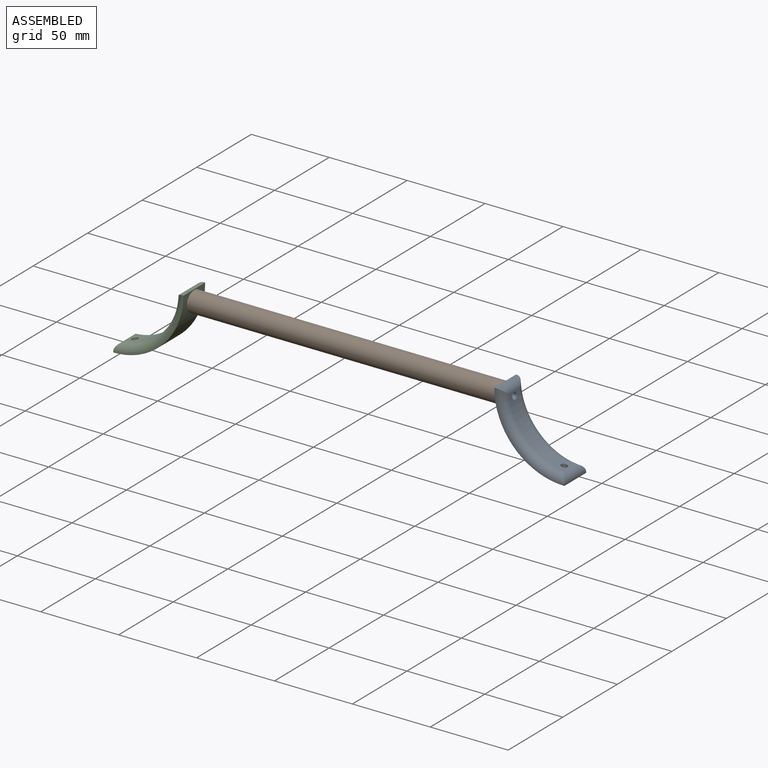
[diagram: assembled view]
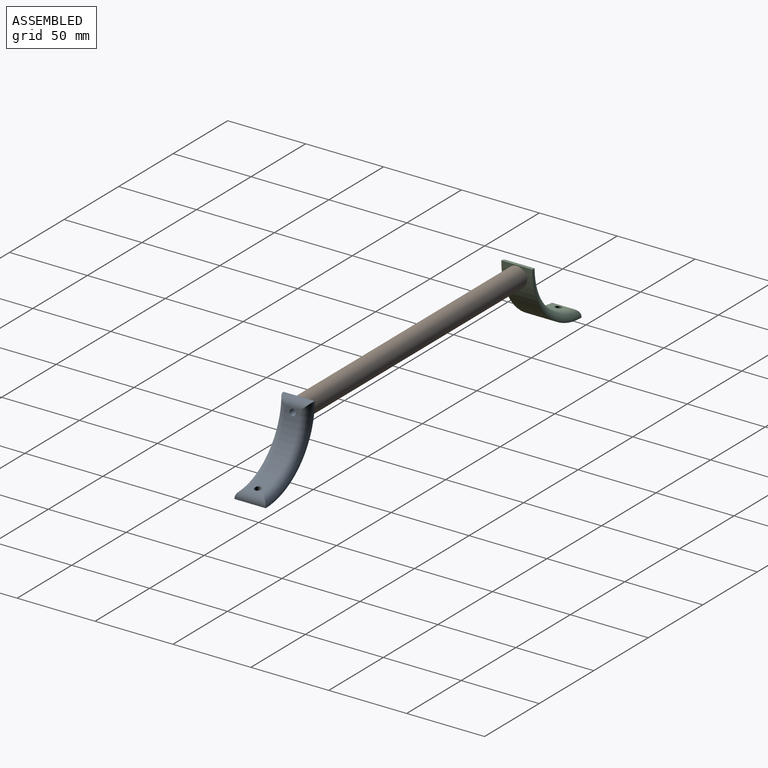
[diagram: assembled view, second angle]
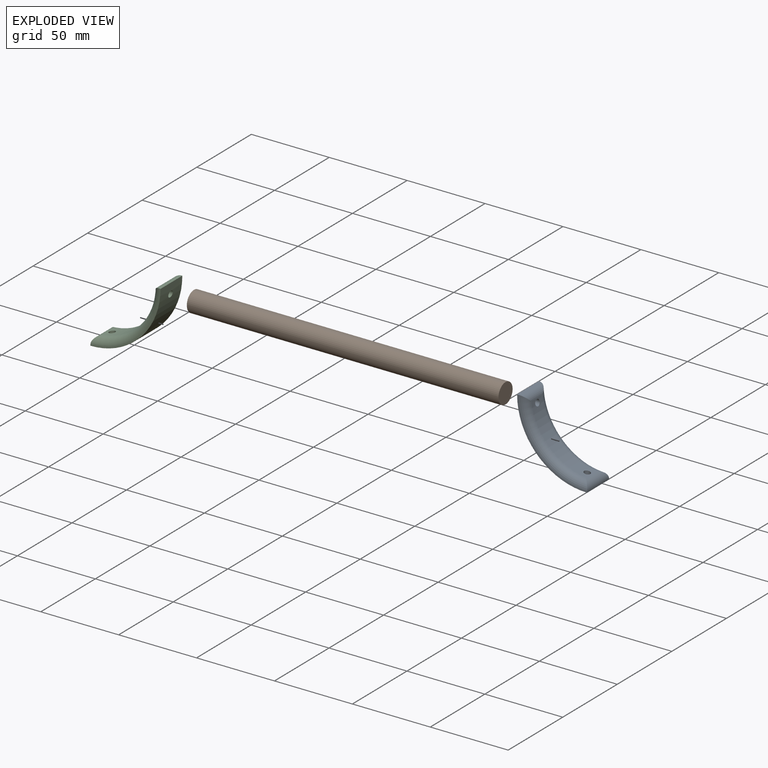
[diagram: exploded view]
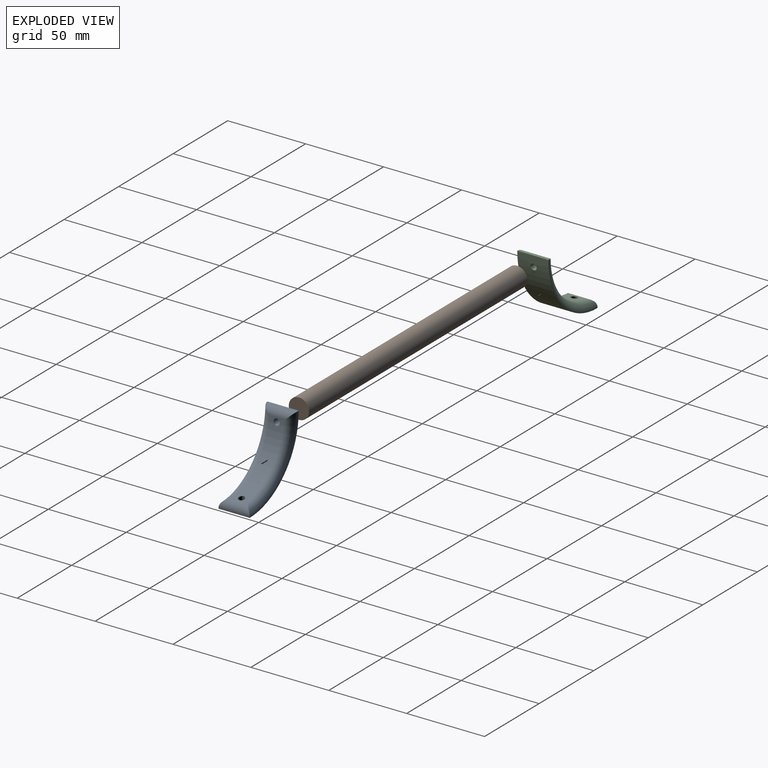
[diagram: exploded view, second angle]
ASSEMBLY  parts=3 mates=2
PART A: 12 faces, bbox 52.1x52.1x20 mm
  f0: cylinder r=39.59mm len=34.9mm, axis (0,0,-1), area 507.3mm2, adj f6,f7,f8,f9,f10,f11
  f1: plane 20x0.69mm, normal (1,0,0), area 13.8mm2, adj f2,f4,f5,f7,f8,f9
  f2: cylinder r=45mm len=45mm, axis (0,0,-1), area 1388.2mm2, adj f1,f3,f4,f5,f10,f11
  f3: plane 20x0.69mm, normal (0,-1,0), area 13.8mm2, adj f2,f4,f5,f6,f7,f8
  f4: plane 45x45mm, normal (0,0,1), area 28.9mm2, adj f1,f2,f3,f7
  f5: plane 45x45mm, normal (0,0,-1), area 28.9mm2, adj f1,f2,f3,f8
  f6: cylinder r=5mm len=19.98mm, axis (0,0,-1), area 118.7mm2, adj f0,f3,f7,f8
  f7: torus R=44.59mm, axis (0,0,1), area 486.3mm2, adj f0,f1,f3,f4,f6,f9
  f8: torus R=44.59mm, axis (0,0,1), area 486.3mm2, adj f0,f1,f3,f5,f6,f9
  f9: cylinder r=5mm len=19.98mm, axis (0,0,-1), area 118.7mm2, adj f0,f1,f7,f8
  f10: cylinder r=2mm len=6.17mm, axis (1,0,0), area 69mm2, adj f0,f2
  f11: cylinder r=2mm len=6.17mm, axis (0,-1,0), area 69mm2, adj f0,f2
PART B: 3 faces, bbox 13x13x200 mm
  f0: cylinder r=6.5mm len=200mm, axis (0,0,-1), area 8168.1mm2, adj f1,f2
  f1: plane 13x13mm, normal (0,0,1), area 132.7mm2, adj f0
  f2: plane 13x13mm, normal (0,0,-1), area 132.7mm2, adj f0
PART C: same geometry as A
PLACE A rot(axis=(0.58,-0.58,0.58),120deg) t=(191.18,48.31,72.59)mm
PLACE B rot(axis=(0,-1,0),90deg) t=(46.42,38.31,65.59)mm
PLACE C rot(axis=(-0.58,-0.58,-0.58),120deg) t=(-98.34,28.31,72.59)mm
MATE fastened A.f11 <-> B.f0  axis (1,0,0) through (146.42,38.31,65.59)mm
MATE fastened C.f11 <-> B.f0  axis (-1,0,0) through (-53.58,38.31,65.59)mm
